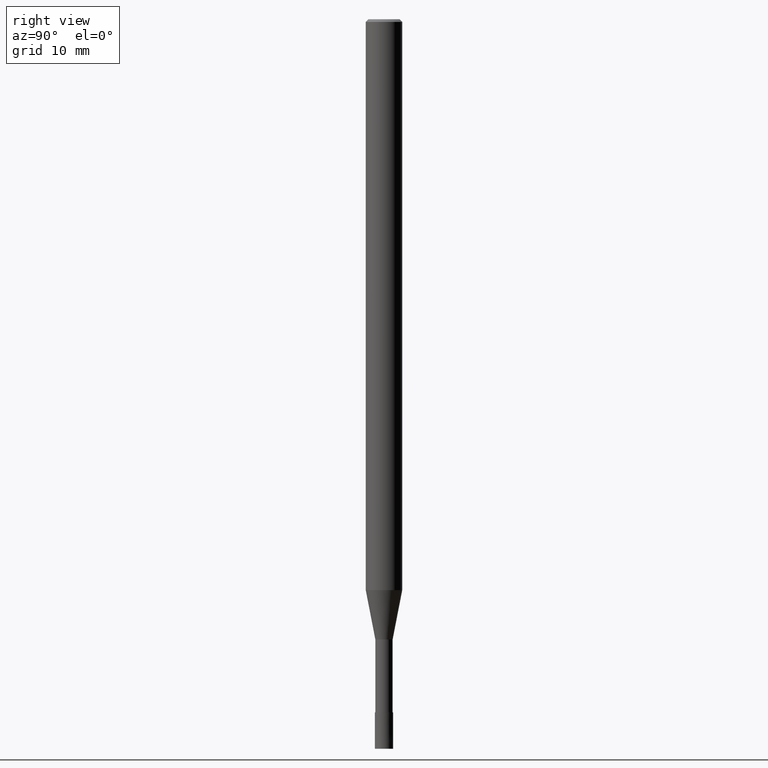
[diagram: clean part render]
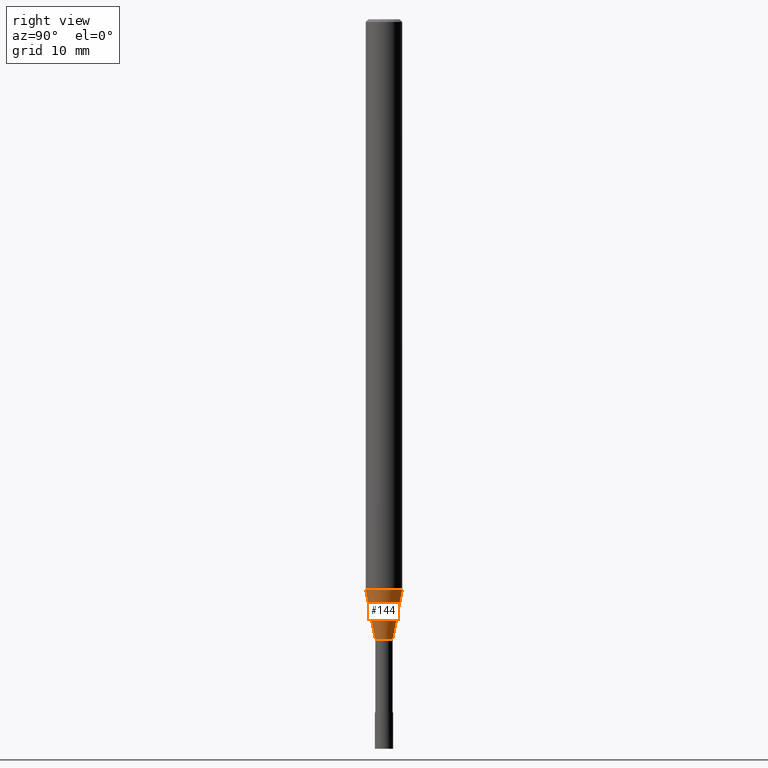
[diagram: same view with one face highlighted and labeled with its STEP entity id]
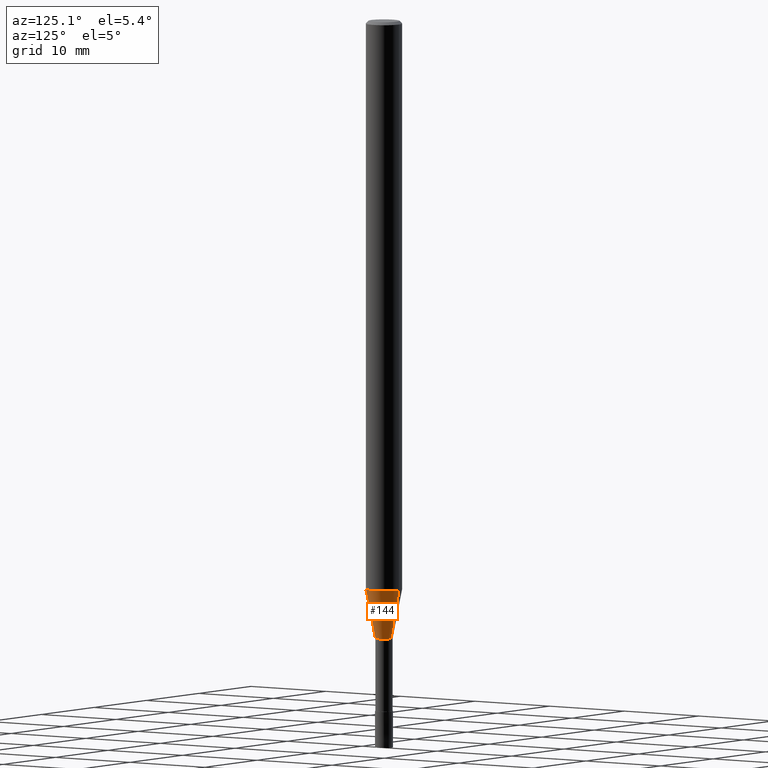
[diagram: same view with one face highlighted and labeled with its STEP entity id]
A machine part, right view. The second image highlights one B-rep face of the part: STEP entity #144.
A second angle (auxiliary view) of the same face is appended — the face is thin or edge-on in the first view.
In plain terms, the highlighted conical surface has half-angle 11 deg.
Its self-contained STEP definition (entity closure, byte-faithful):
#98=EDGE_CURVE('',#120,#146,#235,.T.);
#114=VERTEX_POINT('',#254);
#118=EDGE_CURVE('',#146,#122,#258,.T.);
#120=VERTEX_POINT('',#260);
#122=VERTEX_POINT('',#262);
#132=EDGE_CURVE('',#114,#120,#273,.T.);
#136=EDGE_CURVE('',#114,#122,#277,.T.);
#144=ADVANCED_FACE('',(#288),#289,.T.);
#146=VERTEX_POINT('',#291);
#235=CIRCLE('',#381,0.94995);
#254=CARTESIAN_POINT('',(0.0,1.99995,-62.598));
#258=LINE('',#411,#412);
#260=CARTESIAN_POINT('',(0.0,0.94995,-68.0));
#262=CARTESIAN_POINT('',(2.44915147732706E-016,-1.99995,-62.598));
#273=LINE('',#431,#432);
#277=CIRCLE('',#439,1.99995);
#288=FACE_OUTER_BOUND('',#450,.T.);
#289=CONICAL_SURFACE('',#451,1.47495,0.191978649183841);
#291=CARTESIAN_POINT('',(1.16331480581357E-016,-0.94995,-68.0));
#381=AXIS2_PLACEMENT_3D('',#546,#547,#548);
#411=CARTESIAN_POINT('',(1.80623314157031E-016,-1.47495,-65.299));
#412=VECTOR('',#573,1.0);
#431=CARTESIAN_POINT('',(-1.80623314157032E-016,1.47495,-65.299));
#432=VECTOR('',#586,1.0);
#439=AXIS2_PLACEMENT_3D('',#588,#589,#590);
#450=EDGE_LOOP('',(#616,#617,#618,#619));
#451=AXIS2_PLACEMENT_3D('',#620,#621,#622);
#546=CARTESIAN_POINT('',(0.0,0.0,-68.0));
#547=DIRECTION('',(0.0,0.0,-1.0));
#548=DIRECTION('',(0.0,1.0,0.0));
#573=DIRECTION('',(2.33656809909205E-017,-0.190801565890859,0.981628627564211));
#586=DIRECTION('',(2.33656809909205E-017,-0.190801565890859,-0.981628627564211));
#588=CARTESIAN_POINT('',(0.0,0.0,-62.598));
#589=DIRECTION('',(0.0,0.0,-1.0));
#590=DIRECTION('',(0.0,1.0,0.0));
#616=ORIENTED_EDGE('',*,*,#132,.F.);
#617=ORIENTED_EDGE('',*,*,#136,.T.);
#618=ORIENTED_EDGE('',*,*,#118,.F.);
#619=ORIENTED_EDGE('',*,*,#98,.F.);
#620=CARTESIAN_POINT('',(0.0,0.0,-65.299));
#621=DIRECTION('',(-0.0,-0.0,1.0));
#622=DIRECTION('',(0.0,1.0,0.0));